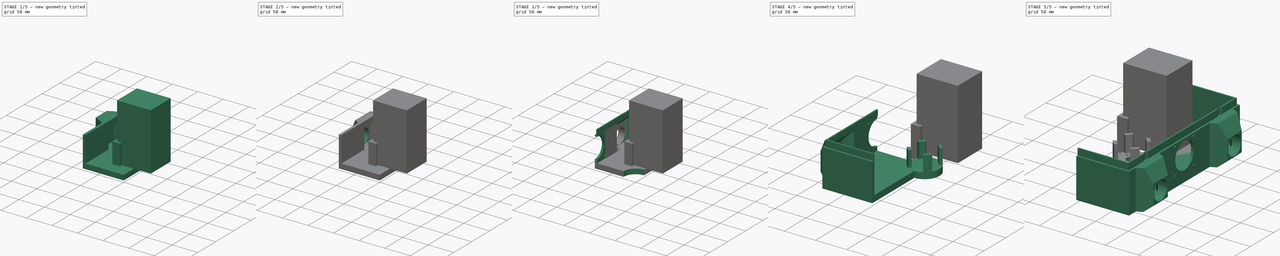
[diagram: build sequence overview — one tinted view per stage of 5, left to right]
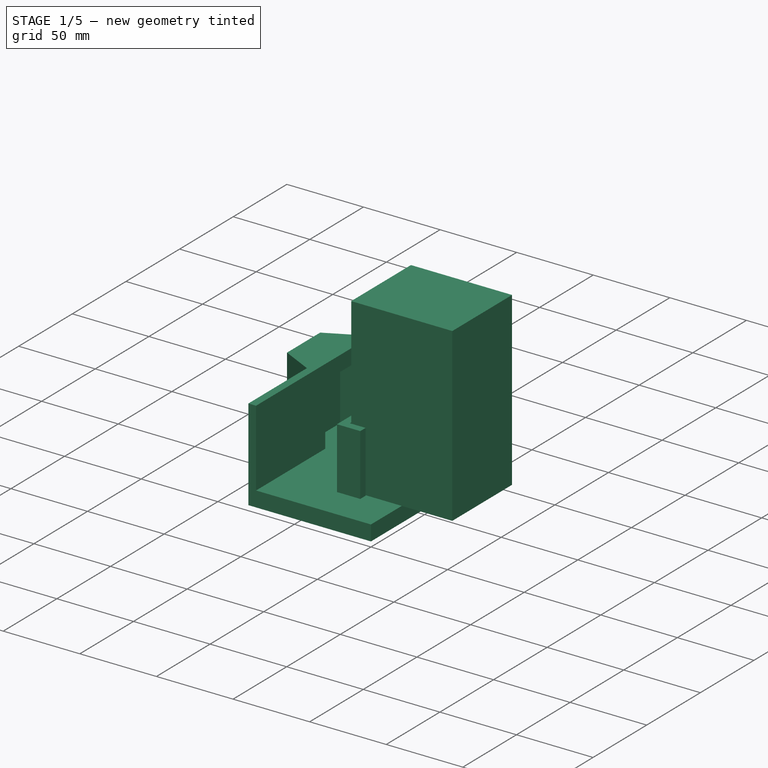
[diagram: stage 1 of 5 — iso view after this stage's code; geometry added in this stage tinted green]
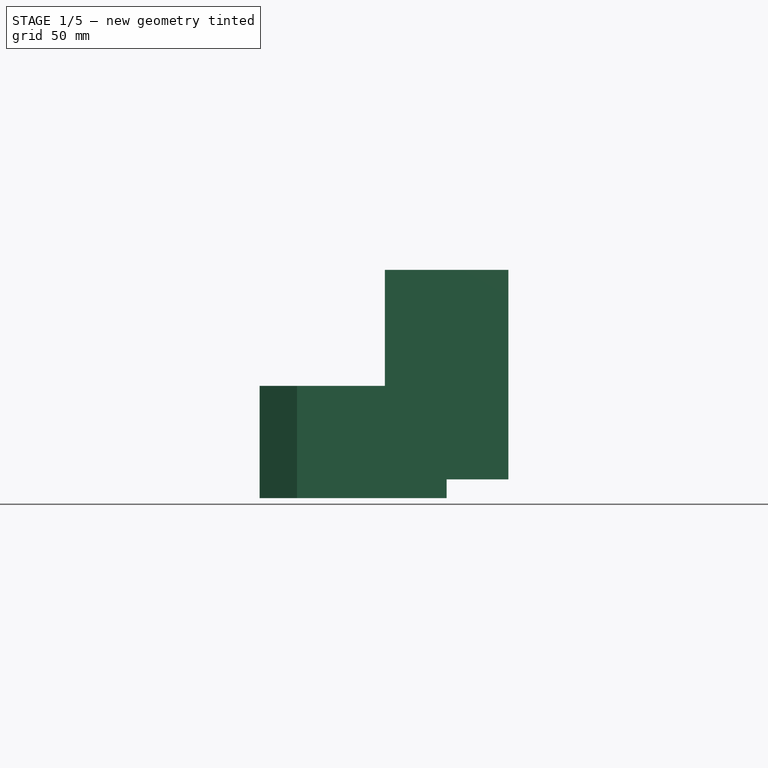
[diagram: stage 1 of 5 — front view after this stage's code; geometry added in this stage tinted green]
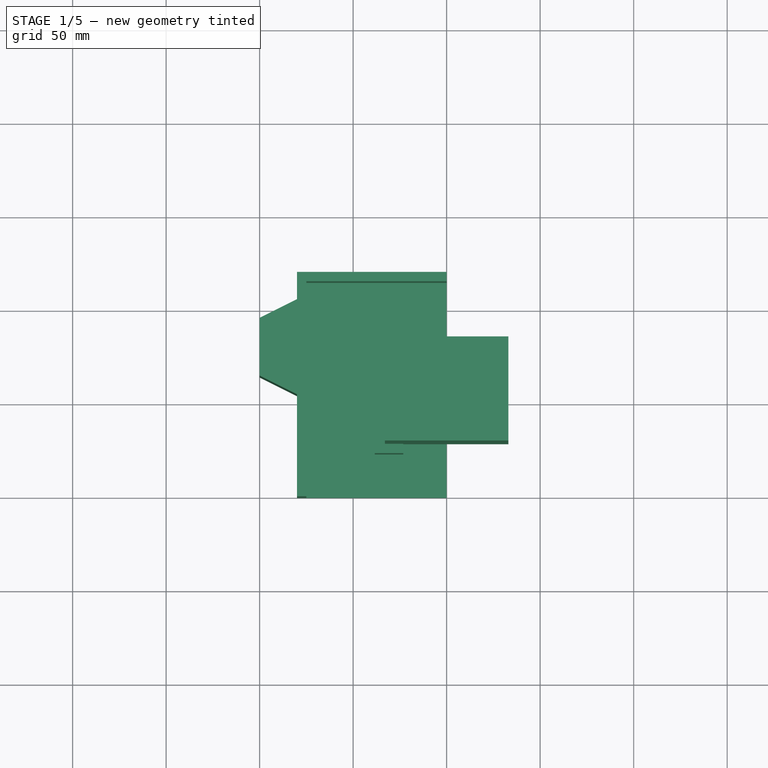
[diagram: stage 1 of 5 — top view after this stage's code; geometry added in this stage tinted green]
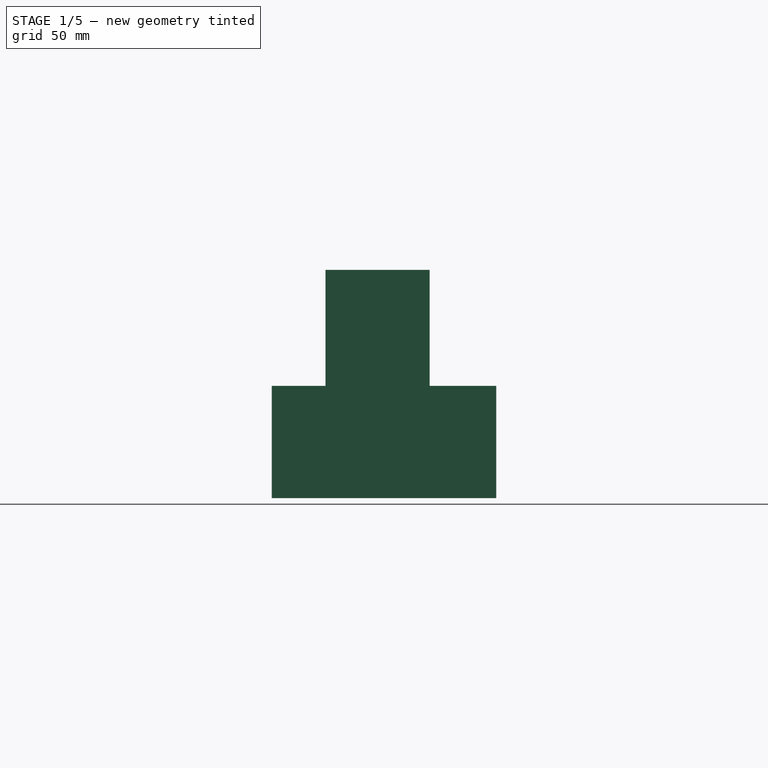
[diagram: stage 1 of 5 — right view after this stage's code; geometry added in this stage tinted green]
FCSTD DOCUMENT  (FreeCAD 0.18R16146 (Git))
Label: goat-ver2
License: All rights reserved
LicenseURL: http://en.wikipedia.org/wiki/All_rights_reserved
objects: Sketcher::SketchObject×20, PartDesign::Pocket×11, PartDesign::Pad×7, PartDesign::Body×4, Part::Mirroring×3, Spreadsheet::Sheet×1, PartDesign::PolarPattern×1, PartDesign::Chamfer×1
note: 65 computed .brp shape members not serialized (recipe doc carries the construction recipe); baked Part::Feature solids carry a one-line shape summary decoded from their .brp

FEATURE [Sketcher::SketchObject] Sketch011
  AttachmentOffset = pos=(0,0,10) rot=(0,0,1;0rad)
  MapMode = 5
  Placement = pos=(0,0,10) rot=(0,0,1;0rad)
  Support = -> [XY_Plane001]
  expr: AttachmentOffset.Base.z = config.car_floor_thickness
  expr: Constraints[1] = config.grasscutter_inner_radius
  sketch-geometry (1):
    g0: Circle CenterX=0 CenterY=0 CenterZ=0 NormalX=0 NormalY=0 NormalZ=1 AngleXU=0 Radius=7.5
  constraints (2):
    c: Coincident(g0,g-1)
    c: Radius(g0) = 7.5
FEATURE [Sketcher::SketchObject] Sketch012
  AttachmentOffset = pos=(0,0,-2) rot=(0,0,1;0rad)
  MapMode = 5
  Placement = pos=(0,0,-2) rot=(0,0,1;0rad)
  Support = -> [XY_Plane001]
  expr: Constraints[19] = config.grasscutter_screw_hole_radius
  expr: Constraints[18] = config.grasscutter_screw_radius
  sketch-geometry (13):
    g0: LineSegment [constr] StartX=11.6913 StartY=6.75 StartZ=0 EndX=-1.24e-14 EndY=13.5 EndZ=0
    g1: LineSegment [constr] StartX=-1.24e-14 StartY=13.5 StartZ=0 EndX=-11.6913 EndY=6.75 EndZ=0
    g2: LineSegment [constr] StartX=-11.6913 StartY=6.75 StartZ=0 EndX=-11.6913 EndY=-6.75 EndZ=0
    g3: LineSegment [constr] StartX=-11.6913 StartY=-6.75 StartZ=0 EndX=1.8e-15 EndY=-13.5 EndZ=0
    g4: LineSegment [constr] StartX=1.8e-15 StartY=-13.5 StartZ=0 EndX=11.6913 EndY=-6.75 EndZ=0
    g5: LineSegment [constr] StartX=11.6913 StartY=-6.75 StartZ=0 EndX=11.6913 EndY=6.75 EndZ=0
    g6: Circle [constr] CenterX=0 CenterY=0 CenterZ=0 NormalX=0 NormalY=0 NormalZ=1 AngleXU=0 Radius=13.5
    g7: Circle [constr] CenterX=-11.6913 CenterY=-6.75 CenterZ=0 NormalX=0 NormalY=0 NormalZ=1 AngleXU=0 Radius=1.52
    g8: Circle CenterX=1.8e-15 CenterY=-13.5 CenterZ=0 NormalX=0 NormalY=0 NormalZ=1 AngleXU=0 Radius=1.52
    g9: Circle [constr] CenterX=11.6913 CenterY=-6.75 CenterZ=0 NormalX=0 NormalY=0 NormalZ=1 AngleXU=0 Radius=1.52
    g10: Circle CenterX=11.6913 CenterY=6.75 CenterZ=0 NormalX=0 NormalY=0 NormalZ=1 AngleXU=0 Radius=1.52
    g11: Circle CenterX=-1.24e-14 CenterY=13.5 CenterZ=0 NormalX=0 NormalY=0 NormalZ=1 AngleXU=0 Radius=1.52
    g12: Circle CenterX=-11.6913 CenterY=6.75 CenterZ=0 NormalX=0 NormalY=0 NormalZ=1 AngleXU=0 Radius=1.52
  constraints (28):
    c: Coincident(g0,g1)
    c: Coincident(g1,g2)
    c: Coincident(g2,g3)
    c: Coincident(g3,g4)
    c: Coincident(g4,g5)
    c: Coincident(g5,g0)
    c: Equal(g0, g1-g5) x5
    c: PointOnObject(g0,g6)
    c: PointOnObject(g1,g6)
    c: PointOnObject(g2,g6)
    c: PointOnObject(g3,g6)
    c: PointOnObject(g4,g6)
    c: PointOnObject(g5,g6)
    c: Coincident(g6,g-1)
    c: Radius(g6) = 13.5
    c: Radius(g9) = 1.52
    c: Equal(g9,g8)
    c: Equal(g9,g7)
    c: Equal(g9,g12)
    c: Equal(g9,g11)
    c: Equal(g9,g10)
    c: Coincident(g3,g8)
    c: Coincident(g2,g7)
    c: Coincident(g1,g12)
    c: Coincident(g4,g9)
    c: Coincident(g1,g11)
    c: Coincident(g10,g0)
    c: Vertical(g2)
FEATURE [Sketcher::SketchObject] Sketch013
  MapMode = 5
  Support = -> [XY_Plane001]
  expr: Constraints[24] = config.grasscutter_screw_nut_radius
  expr: Constraints[18] = config.grasscutter_screw_radius
  sketch-geometry (11):
    g0: LineSegment [constr] StartX=11.6913 StartY=6.75 StartZ=0 EndX=-1.24e-14 EndY=13.5 EndZ=0
    g1: LineSegment [constr] StartX=-1.24e-14 StartY=13.5 StartZ=0 EndX=-11.6913 EndY=6.75 EndZ=0
    g2: LineSegment [constr] StartX=-11.6913 StartY=6.75 StartZ=0 EndX=-11.6913 EndY=-6.75 EndZ=0
    g3: LineSegment [constr] StartX=-11.6913 StartY=-6.75 StartZ=0 EndX=1.8e-15 EndY=-13.5 EndZ=0
    g4: LineSegment [constr] StartX=1.8e-15 StartY=-13.5 StartZ=0 EndX=11.6913 EndY=-6.75 EndZ=0
    g5: LineSegment [constr] StartX=11.6913 StartY=-6.75 StartZ=0 EndX=11.6913 EndY=6.75 EndZ=0
    g6: Circle [constr] CenterX=0 CenterY=0 CenterZ=0 NormalX=0 NormalY=0 NormalZ=1 AngleXU=0 Radius=13.5
    g7: Circle CenterX=1.8e-15 CenterY=-13.5 CenterZ=0 NormalX=0 NormalY=0 NormalZ=1 AngleXU=0 Radius=2.5
    g8: Circle CenterX=11.6913 CenterY=6.75 CenterZ=0 NormalX=0 NormalY=0 NormalZ=1 AngleXU=0 Radius=2.5
    g9: Circle CenterX=-1.24e-14 CenterY=13.5 CenterZ=0 NormalX=0 NormalY=0 NormalZ=1 AngleXU=0 Radius=2.5
    g10: Circle CenterX=-11.6913 CenterY=6.75 CenterZ=0 NormalX=0 NormalY=0 NormalZ=1 AngleXU=0 Radius=2.5
  constraints (24):
    c: Coincident(g0,g1)
    c: Coincident(g1,g2)
    c: Coincident(g2,g3)
    c: Coincident(g3,g4)
    c: Coincident(g4,g5)
    c: Coincident(g5,g0)
    c: Equal(g0, g1-g5) x5
    c: PointOnObject(g0,g6)
    c: PointOnObject(g1,g6)
    c: PointOnObject(g2,g6)
    c: PointOnObject(g3,g6)
    c: PointOnObject(g4,g6)
    c: PointOnObject(g5,g6)
    c: Coincident(g6,g-1)
    c: Radius(g6) = 13.5
    c: Coincident(g3,g7)
    c: Coincident(g1,g10)
    c: Coincident(g1,g9)
    c: Coincident(g8,g0)
    c: Vertical(g2)
    c: Radius(g8) = 2.5
    c: Equal(g8,g9)
    c: Equal(g9,g10)
    c: Equal(g7,g8)
FEATURE [Sketcher::SketchObject] Sketch
  MapMode = 5
  Support = -> [XY_Plane]
  expr: Constraints[10] = config.car_width / 2
  expr: Constraints[9] = config.car_length / 2
  sketch-geometry (4):
    g0: LineSegment StartX=0 StartY=0 StartZ=0 EndX=-80 EndY=0 EndZ=0
    g1: LineSegment StartX=-80 StartY=0 StartZ=0 EndX=-80 EndY=120 EndZ=0
    g2: LineSegment StartX=-80 StartY=120 StartZ=0 EndX=0 EndY=120 EndZ=0
    g3: LineSegment StartX=0 StartY=120 StartZ=0 EndX=0 EndY=0 EndZ=0
  constraints (11):
    c: Coincident(g0,g1)
    c: Coincident(g1,g2)
    c: Coincident(g2,g3)
    c: Coincident(g3,g0)
    c: Horizontal(g0)
    c: Horizontal(g2)
    c: Vertical(g1)
    c: Vertical(g3)
    c: Coincident(g0,g-1)
    c: Distance(g3) = 120
    c: Distance(g2) = 80
FEATURE [PartDesign::Pad] Pad  label="pad-floor"
  Length = 10
  Length2 = 100
  Profile = -> Sketch
  Type = 0
  expr: Length = config.car_floor_thickness
FEATURE [Sketcher::SketchObject] Sketch002
  MapMode = 5
  Support = -> [XY_Plane]
  expr: Constraints[34] = config.engine_placement_from_base
  expr: Constraints[28] = config.car_width / 2
  expr: Constraints[26] = config.car_wall_thickness
  expr: Constraints[27] = config.car_wall_thickness
  expr: Constraints[25] = config.engine_front_length
  expr: Constraints[24] = config.engine_front_length / 2
  expr: Constraints[23] = config.engine_house_width
  expr: Constraints[21] = config.car_length / 2
  expr: Constraints[20] = config.car_width / 2
  sketch-geometry (12):
    g0: LineSegment StartX=0 StartY=115 StartZ=0 EndX=0 EndY=120 EndZ=0
    g1: LineSegment StartX=0 StartY=120 StartZ=0 EndX=-80 EndY=120 EndZ=0
    g2: LineSegment StartX=-80 StartY=120 StartZ=0 EndX=-80 EndY=105.45 EndZ=0
    g3: LineSegment StartX=-80 StartY=105.45 StartZ=0 EndX=-100 EndY=95.45 EndZ=0
    g4: LineSegment StartX=-100 StartY=95.45 StartZ=0 EndX=-100 EndY=64.55 EndZ=0
    g5: LineSegment StartX=-100 StartY=64.55 StartZ=0 EndX=-80 EndY=54.55 EndZ=0
    g6: LineSegment StartX=-80 StartY=54.55 StartZ=0 EndX=-80 EndY=0 EndZ=0
    g7: LineSegment StartX=-80 StartY=0 StartZ=0 EndX=-75 EndY=0 EndZ=0
    g8: LineSegment StartX=-75 StartY=0 StartZ=0 EndX=-75 EndY=115 EndZ=0
    g9: LineSegment StartX=-75 StartY=115 StartZ=0 EndX=0 EndY=115 EndZ=0
    g10: LineSegment [constr] StartX=-100 StartY=64.55 StartZ=0 EndX=-100 EndY=80 EndZ=0
    g11: LineSegment [constr] StartX=-100 StartY=80 StartZ=0 EndX=-100 EndY=95.45 EndZ=0
  constraints (35):
    c: PointOnObject(g0,g-2)
    c: Vertical(g0)
    c: Coincident(g0,g1)
    c: Horizontal(g1)
    c: Coincident(g1,g2)
    c: Vertical(g2)
    c: Coincident(g2,g3)
    c: Coincident(g3,g4)
    c: Vertical(g4)
    c: Coincident(g4,g5)
    c: Coincident(g5,g6)
    c: PointOnObject(g6,g-1)
    c: Vertical(g6)
    c: Coincident(g6,g7)
    c: PointOnObject(g7,g-1)
    c: Coincident(g7,g8)
    c: Vertical(g8)
    c: Coincident(g8,g9)
    c: Coincident(g9,g0)
    c: Horizontal(g9)
    c: Distance(g1) = 80
    c: Distance(g-1,g0) = 120
    c: Equal(g3,g5)
    c: Distance(g4) = 30.9
    c: DistanceY(g3,g2) = 10
    c: DistanceX(g3,g2) = 20
    c: Distance(g0,g0) = 5
    c: Distance(g6,g7) = 5
    c: Distance(g-1,g6) = 80
    c: Coincident(g4,g10)
    c: PointOnObject(g10,g4)
    c: Coincident(g10,g11)
    c: Coincident(g11,g3)
    c: Equal(g10,g11)
    c: DistanceY(g-1,g10) = 80
FEATURE [PartDesign::Pad] Pad001  label="pad-walls"
  BaseFeature = -> Pad
  Length = 60
  Length2 = 100
  Profile = -> Sketch002
  Type = 0
  expr: Length = config.lower_car_height
FEATURE [Sketcher::SketchObject] Sketch003
  AttachmentOffset = pos=(0,0,-75) rot=(0,0,1;0rad)
  MapMode = 5
  Placement = pos=(-75,1.67e-14,-1.67e-14) rot=(0.57735,0.57735,0.57735;2.0944rad)
  Support = -> [YZ_Plane]
  expr: AttachmentOffset.Base.y = 0
  expr: Constraints[16] = config.engine_placement_from_base
  expr: Constraints[10] = config.car_floor_thickness
  expr: Constraints[9] = config.engine_house_height
  expr: Constraints[8] = config.engine_house_width
  sketch-geometry (6):
    g0: LineSegment StartX=64.55 StartY=50 StartZ=0 EndX=95.45 EndY=50 EndZ=0
    g1: LineSegment StartX=95.45 StartY=50 StartZ=0 EndX=95.45 EndY=10 EndZ=0
    g2: LineSegment StartX=95.45 StartY=10 StartZ=0 EndX=64.55 EndY=10 EndZ=0
    g3: LineSegment StartX=64.55 StartY=10 StartZ=0 EndX=64.55 EndY=50 EndZ=0
    g4: LineSegment [constr] StartX=64.55 StartY=10 StartZ=0 EndX=80 EndY=10 EndZ=0
    g5: LineSegment [constr] StartX=80 StartY=10 StartZ=0 EndX=95.45 EndY=10 EndZ=0
  constraints (17):
    c: Coincident(g0,g1)
    c: Coincident(g1,g2)
    c: Coincident(g2,g3)
    c: Coincident(g3,g0)
    c: Horizontal(g0)
    c: Horizontal(g2)
    c: Vertical(g1)
    c: Vertical(g3)
    c: Distance(g0) = 30.9
    c: Distance(g3) = 40
    c: DistanceY(g-1,g2) = 10
    c: Coincident(g2,g4)
    c: Horizontal(g4)
    c: Coincident(g4,g5)
    c: Coincident(g5,g1)
    c: Equal(g4,g5)
    c: DistanceX(g-1,g4) = 80
FEATURE [PartDesign::Pocket] Pocket  label="pocket-engine-house"
  BaseFeature = -> Pad001
  Length = 12
  Length2 = 100
  Profile = -> Sketch003
  Type = 0
  expr: Length = config.engine_pocket_house
FEATURE [Sketcher::SketchObject] Sketch018
  AttachmentOffset = pos=(0,28.7,10) rot=(0,0,1;0rad)
  MapMode = 5
  Placement = pos=(0,28.7,10) rot=(0,0,1;0rad)
  Support = -> [XY_Plane002]
  expr: AttachmentOffset.Base.y = config.grasscutter_motor_radius + 10mm
  expr: AttachmentOffset.Base.x = 0
  expr: AttachmentOffset.Base.z = config.car_floor_thickness
  expr: Constraints[9] = config.battery_width
  expr: Constraints[8] = config.battery_length
  sketch-geometry (4):
    g0: LineSegment StartX=-33 StartY=55.7 StartZ=0 EndX=33 EndY=55.7 EndZ=0
    g1: LineSegment StartX=33 StartY=55.7 StartZ=0 EndX=33 EndY=0 EndZ=0
    g2: LineSegment StartX=33 StartY=0 StartZ=0 EndX=-33 EndY=0 EndZ=0
    g3: LineSegment StartX=-33 StartY=0 StartZ=0 EndX=-33 EndY=55.7 EndZ=0
  constraints (11):
    c: Coincident(g0,g1)
    c: Coincident(g1,g2)
    c: Coincident(g2,g3)
    c: Coincident(g3,g0)
    c: Horizontal(g0)
    c: Horizontal(g2)
    c: Vertical(g1)
    c: Vertical(g3)
    c: Distance(g0) = 66
    c: Distance(g3) = 55.7
    c: Symmetric(g1,g2,g-1)
FEATURE [PartDesign::Pad] Pad005
  Length = 112
  Length2 = 100
  Profile = -> Sketch018
  Type = 0
  expr: Length = config.battery_height
FEATURE [Sketcher::SketchObject] Sketch019
  MapMode = 5
  Support = -> [XY_Plane]
  expr: Constraints[74] = config.engine_screw_nut_radius
  expr: Constraints[14] = config.engine_screw_sepdist
  expr: Constraints[16] = config.car_width / 2 - config.car_wall_thickness + config.engine_pocket_house
  expr: Constraints[10] = config.engine_screw_hole_radius * 2.5
  expr: Constraints[15] = config.engine_placement_from_base
  sketch-geometry (27):
    g0: LineSegment [constr] StartX=-82.875 StartY=92 StartZ=0 EndX=-58.875 EndY=92 EndZ=0
    g1: LineSegment [constr] StartX=-58.875 StartY=92 StartZ=0 EndX=-58.875 EndY=68 EndZ=0
    g2: LineSegment [constr] StartX=-58.875 StartY=68 StartZ=0 EndX=-82.875 EndY=68 EndZ=0
    g3: LineSegment [constr] StartX=-82.875 StartY=68 StartZ=0 EndX=-82.875 EndY=92 EndZ=0
    g4: LineSegment [constr] StartX=-82.875 StartY=92 StartZ=0 EndX=-87 EndY=80 EndZ=0
    g5: LineSegment [constr] StartX=-87 StartY=80 StartZ=0 EndX=-82.875 EndY=68 EndZ=0
    g6: LineSegment StartX=-79.8006 StartY=93.775 StartZ=0 EndX=-82.875 EndY=95.55 EndZ=0
    g7: LineSegment StartX=-82.875 StartY=95.55 StartZ=0 EndX=-85.9494 EndY=93.775 EndZ=0
    g8: LineSegment StartX=-85.9494 StartY=93.775 StartZ=0 EndX=-85.9494 EndY=90.225 EndZ=0
    g9: LineSegment StartX=-85.9494 StartY=90.225 StartZ=0 EndX=-82.875 EndY=88.45 EndZ=0
    g10: LineSegment StartX=-82.875 StartY=88.45 StartZ=0 EndX=-79.8006 EndY=90.225 EndZ=0
    g11: LineSegment StartX=-79.8006 StartY=90.225 StartZ=0 EndX=-79.8006 EndY=93.775 EndZ=0
    g12: Circle [constr] CenterX=-82.875 CenterY=92 CenterZ=0 NormalX=0 NormalY=0 NormalZ=1 AngleXU=0 Radius=3.55
    g13: LineSegment StartX=-55.8006 StartY=93.775 StartZ=0 EndX=-58.875 EndY=95.55 EndZ=0
    g14: LineSegment StartX=-58.875 StartY=95.55 StartZ=0 EndX=-61.9494 EndY=93.775 EndZ=0
    g15: LineSegment StartX=-61.9494 StartY=93.775 StartZ=0 EndX=-61.9494 EndY=90.225 EndZ=0
    g16: LineSegment StartX=-61.9494 StartY=90.225 StartZ=0 EndX=-58.875 EndY=88.45 EndZ=0
    g17: LineSegment StartX=-58.875 StartY=88.45 StartZ=0 EndX=-55.8006 EndY=90.225 EndZ=0
    g18: LineSegment StartX=-55.8006 StartY=90.225 StartZ=0 EndX=-55.8006 EndY=93.775 EndZ=0
    g19: Circle [constr] CenterX=-58.875 CenterY=92 CenterZ=0 NormalX=0 NormalY=0 NormalZ=1 AngleXU=0 Radius=3.55
    g20: LineSegment StartX=-58.875 StartY=71.55 StartZ=0 EndX=-61.9494 EndY=69.775 EndZ=0
    g21: LineSegment StartX=-61.9494 StartY=69.775 StartZ=0 EndX=-61.9494 EndY=66.225 EndZ=0
    g22: LineSegment StartX=-61.9494 StartY=66.225 StartZ=0 EndX=-58.875 EndY=64.45 EndZ=0
    g23: LineSegment StartX=-58.875 StartY=64.45 StartZ=0 EndX=-55.8006 EndY=66.225 EndZ=0
    g24: LineSegment StartX=-55.8006 StartY=66.225 StartZ=0 EndX=-55.8006 EndY=69.775 EndZ=0
    g25: LineSegment StartX=-55.8006 StartY=69.775 StartZ=0 EndX=-58.875 EndY=71.55 EndZ=0
    g26: Circle [constr] CenterX=-58.875 CenterY=68 CenterZ=0 NormalX=0 NormalY=0 NormalZ=1 AngleXU=0 Radius=3.55
  constraints (65):
    c: Coincident(g0,g1)
    c: Coincident(g1,g2)
    c: Coincident(g2,g3)
    c: Coincident(g3,g0)
    c: Horizontal(g0)
    c: Vertical(g1)
    c: Coincident(g0,g4)
    c: Coincident(g4,g5)
    c: Coincident(g5,g2)
    c: Equal(g5,g4)
    c: DistanceX(g4,g0) = 4.125
    c: Equal(g0,g3)
    c: Equal(g3,g2)
    c: Equal(g2,g1)
    c: Distance(g1) = 24
    c: DistanceY(g-1,g4) = 80
    c: DistanceX(g4,g-1) = 87
    c: Coincident(g6,g7)
    c: Coincident(g7,g8)
    c: Coincident(g8,g9)
    c: Coincident(g9,g10)
    c: Coincident(g10,g11)
    c: Coincident(g11,g6)
    c: Equal(g6, g7-g11) x5
    c: PointOnObject(g6,g12)
    c: PointOnObject(g7,g12)
    c: PointOnObject(g8,g12)
    c: PointOnObject(g9,g12)
    c: PointOnObject(g10,g12)
    c: PointOnObject(g11,g12)
    c: Coincident(g12,g0)
    c: Coincident(g13,g14)
    c: Coincident(g14,g15)
    c: Coincident(g15,g16)
    c: Coincident(g16,g17)
    c: Coincident(g17,g18)
    c: Coincident(g18,g13)
    c: Equal(g13, g14-g18) x5
    c: PointOnObject(g13,g19)
    c: PointOnObject(g14,g19)
    c: PointOnObject(g15,g19)
    c: PointOnObject(g16,g19)
    c: PointOnObject(g17,g19)
    c: PointOnObject(g18,g19)
    c: Coincident(g19,g0)
    c: Coincident(g20,g21)
    c: Coincident(g21,g22)
    c: Coincident(g22,g23)
    c: Coincident(g23,g24)
    c: Coincident(g24,g25)
    c: Coincident(g25,g20)
    c: Equal(g20, g21-g25) x5
    c: PointOnObject(g20,g26)
    c: PointOnObject(g21,g26)
    c: PointOnObject(g22,g26)
    c: PointOnObject(g23,g26)
    c: PointOnObject(g24,g26)
    c: PointOnObject(g25,g26)
    c: Coincident(g26,g1)
    c: Vertical(g8)
    c: Vertical(g21)
    c: Vertical(g15)
    c: Radius(g26) = 3.55
    c: Equal(g26,g19)
    c: Equal(g26,g12)
FEATURE [Sketcher::SketchObject] Sketch020
  MapMode = 5
  Support = -> [XY_Plane002]
FEATURE [PartDesign::Body] Body002  label="body-battery"
  Group = -> [Sketch018,Pad005,Sketch020]
  Origin = -> Origin002
  Tip = -> Pad005
FEATURE [Sketcher::SketchObject] Sketch021
  MapMode = 5
  Support = -> [XY_Plane003]
  expr: Constraints[14] = config.car_wall_thickness
  sketch-geometry (6):
    g0: LineSegment StartX=-38.4449 StartY=38.4225 StartZ=0 EndX=-38.4449 EndY=23.2077 EndZ=0
    g1: LineSegment StartX=-38.4449 StartY=23.2077 StartZ=0 EndX=-23.2301 EndY=23.2077 EndZ=0
    g2: LineSegment StartX=-33.4449 StartY=28.2077 StartZ=0 EndX=-33.4449 EndY=38.4225 EndZ=0
    g3: LineSegment StartX=-33.4449 StartY=38.4225 StartZ=0 EndX=-38.4449 EndY=38.4225 EndZ=0
    g4: LineSegment StartX=-23.2301 StartY=23.2077 StartZ=0 EndX=-23.2301 EndY=28.2077 EndZ=0
    g5: LineSegment StartX=-23.2301 StartY=28.2077 StartZ=0 EndX=-33.4449 EndY=28.2077 EndZ=0
  constraints (15):
    c: Vertical(g0)
    c: Coincident(g0,g1)
    c: Horizontal(g1)
    c: Coincident(g2,g3)
    c: Coincident(g3,g0)
    c: Horizontal(g3)
    c: Equal(g0,g1)
    c: Coincident(g1,g4)
    c: Vertical(g4)
    c: Coincident(g4,g5)
    c: Coincident(g5,g2)
    c: Equal(g5,g2)
    c: Equal(g3,g4)
    c: Vertical(g2)
    c: Distance(g3) = 5
FEATURE [PartDesign::Pad] Pad006
  Length = 50
  Length2 = 100
  Profile = -> Sketch021
  Type = 0
FEATURE [PartDesign::Body] Body003
  Group = -> [Sketch021,Pad006]
  Origin = -> Origin003
  Tip = -> Pad006
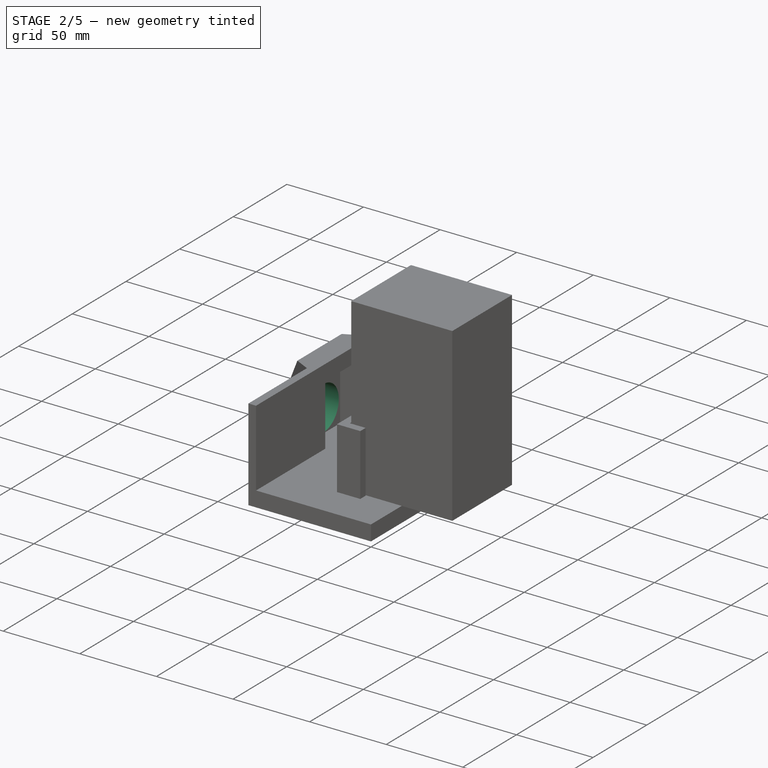
[diagram: stage 2 of 5 — iso view after this stage's code; geometry added in this stage tinted green]
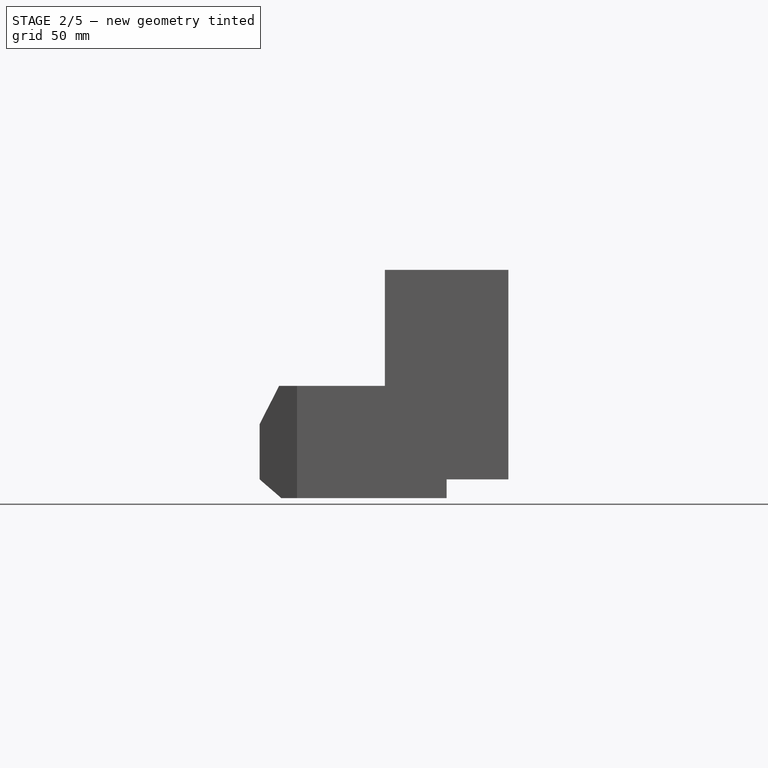
[diagram: stage 2 of 5 — front view after this stage's code; geometry added in this stage tinted green]
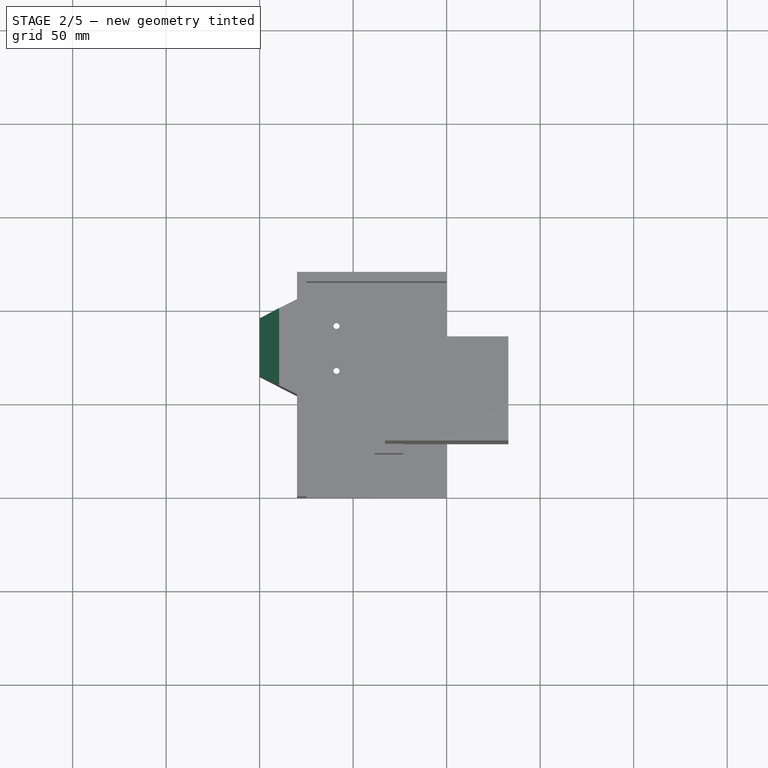
[diagram: stage 2 of 5 — top view after this stage's code; geometry added in this stage tinted green]
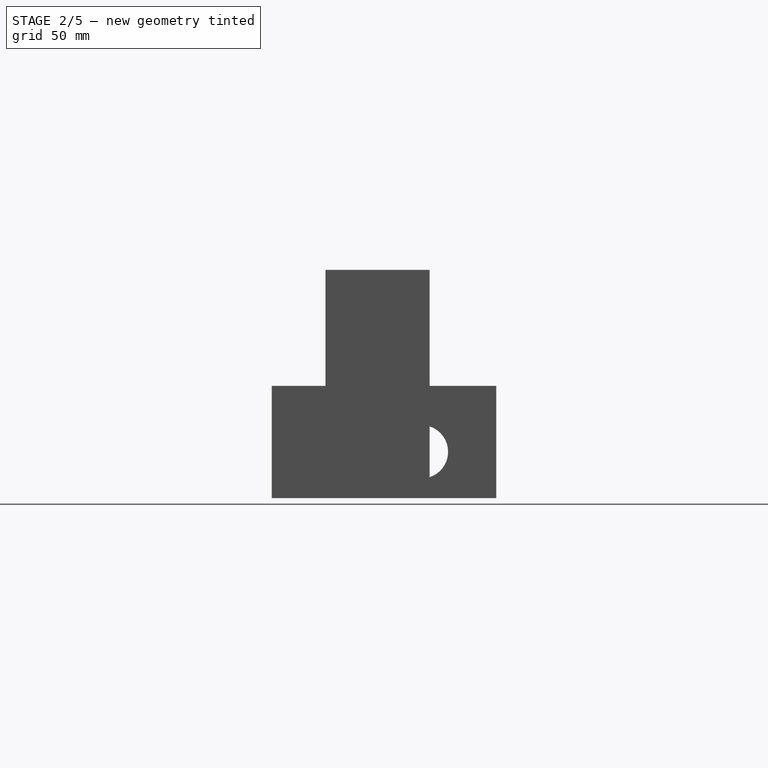
[diagram: stage 2 of 5 — right view after this stage's code; geometry added in this stage tinted green]
FEATURE [Sketcher::SketchObject] Sketch004
  MapMode = 5
  Placement = pos=(0,0,0) rot=(0.57735,0.57735,0.57735;2.0944rad)
  Support = -> [YZ_Plane]
  expr: Constraints[2] = config.engine_radius
  expr: Constraints[1] = config.engine_placement_from_base
  expr: Constraints[0] = config.car_floor_thickness + config.engine_lift_from_base + config.engine_radius
  sketch-geometry (1):
    g0: Circle CenterX=80 CenterY=24.75 CenterZ=0 NormalX=0 NormalY=0 NormalZ=1 AngleXU=0 Radius=14.25
  constraints (3):
    c: DistanceY(g-1,g0) = 24.75
    c: DistanceX(g-1,g0) = 80
    c: Radius(g0) = 14.25
FEATURE [PartDesign::Pocket] Pocket001  label="pocket-engine-radius"
  BaseFeature = -> Pocket
  Length = 5
  Length2 = 100
  Profile = -> Sketch004
  Type = 1
FEATURE [Sketcher::SketchObject] Sketch005
  MapMode = 5
  Support = -> [XY_Plane]
  expr: Constraints[24] = config.car_width / 2 - config.car_wall_thickness + config.engine_pocket_house
  expr: Constraints[20] = config.engine_screw_hole_radius
  expr: Constraints[15] = config.engine_placement_from_base
  expr: Constraints[14] = config.engine_screw_sepdist
  expr: Constraints[10] = config.engine_screw_hole_radius * 2.5
  sketch-geometry (10):
    g0: LineSegment [constr] StartX=-82.875 StartY=92 StartZ=0 EndX=-58.875 EndY=92 EndZ=0
    g1: LineSegment [constr] StartX=-58.875 StartY=92 StartZ=0 EndX=-58.875 EndY=68 EndZ=0
    g2: LineSegment [constr] StartX=-58.875 StartY=68 StartZ=0 EndX=-82.875 EndY=68 EndZ=0
    g3: LineSegment [constr] StartX=-82.875 StartY=68 StartZ=0 EndX=-82.875 EndY=92 EndZ=0
    g4: LineSegment [constr] StartX=-82.875 StartY=92 StartZ=0 EndX=-87 EndY=80 EndZ=0
    g5: LineSegment [constr] StartX=-87 StartY=80 StartZ=0 EndX=-82.875 EndY=68 EndZ=0
    g6: Circle CenterX=-82.875 CenterY=92 CenterZ=0 NormalX=0 NormalY=0 NormalZ=1 AngleXU=0 Radius=1.65
    g7: Circle CenterX=-58.875 CenterY=92 CenterZ=0 NormalX=0 NormalY=0 NormalZ=1 AngleXU=0 Radius=1.65
    g8: Circle CenterX=-58.875 CenterY=68 CenterZ=0 NormalX=0 NormalY=0 NormalZ=1 AngleXU=0 Radius=1.65
    g9: Circle CenterX=-82.875 CenterY=68 CenterZ=0 NormalX=0 NormalY=0 NormalZ=1 AngleXU=0 Radius=1.65
  constraints (25):
    c: Coincident(g0,g1)
    c: Coincident(g1,g2)
    c: Coincident(g2,g3)
    c: Coincident(g3,g0)
    c: Horizontal(g0)
    c: Vertical(g1)
    c: Coincident(g0,g4)
    c: Coincident(g4,g5)
    c: Coincident(g5,g2)
    c: Equal(g5,g4)
    c: DistanceX(g4,g0) = 4.125
    c: Equal(g0,g3)
    c: Equal(g3,g2)
    c: Equal(g2,g1)
    c: Distance(g1) = 24
    c: DistanceY(g-1,g4) = 80
    c: Coincident(g6,g0)
    c: Coincident(g7,g0)
    c: Coincident(g8,g1)
    c: Coincident(g9,g2)
    c: Radius(g6) = 1.65
    c: Equal(g6,g7)
    c: Equal(g6,g8)
    c: Equal(g6,g9)
    c: DistanceX(g4,g-1) = 87
FEATURE [PartDesign::Pocket] Pocket002  label="pocket-engine-screw"
  BaseFeature = -> Pocket001
  Length = 10
  Length2 = 100
  Profile = -> Sketch005
  Reversed = true
  Type = 0
  expr: Length = config.car_floor_thickness
FEATURE [Sketcher::SketchObject] Sketch006
  MapMode = 5
  Support = -> [XY_Plane]
  expr: Constraints[74] = config.engine_screw_nut_radius
  expr: Constraints[14] = config.engine_screw_sepdist
  expr: Constraints[16] = config.car_width / 2 - config.car_wall_thickness + config.engine_pocket_house
  expr: Constraints[10] = config.engine_screw_hole_radius * 2.5
  expr: Constraints[15] = config.engine_placement_from_base
  sketch-geometry (34):
    g0: LineSegment [constr] StartX=-82.875 StartY=92 StartZ=0 EndX=-58.875 EndY=92 EndZ=0
    g1: LineSegment [constr] StartX=-58.875 StartY=92 StartZ=0 EndX=-58.875 EndY=68 EndZ=0
    g2: LineSegment [constr] StartX=-58.875 StartY=68 StartZ=0 EndX=-82.875 EndY=68 EndZ=0
    g3: LineSegment [constr] StartX=-82.875 StartY=68 StartZ=0 EndX=-82.875 EndY=92 EndZ=0
    g4: LineSegment [constr] StartX=-82.875 StartY=92 StartZ=0 EndX=-87 EndY=80 EndZ=0
    g5: LineSegment [constr] StartX=-87 StartY=80 StartZ=0 EndX=-82.875 EndY=68 EndZ=0
    g6: LineSegment StartX=-79.8006 StartY=93.775 StartZ=0 EndX=-82.875 EndY=95.55 EndZ=0
    g7: LineSegment StartX=-82.875 StartY=95.55 StartZ=0 EndX=-85.9494 EndY=93.775 EndZ=0
    g8: LineSegment StartX=-85.9494 StartY=93.775 StartZ=0 EndX=-85.9494 EndY=90.225 EndZ=0
    g9: LineSegment StartX=-85.9494 StartY=90.225 StartZ=0 EndX=-82.875 EndY=88.45 EndZ=0
    g10: LineSegment StartX=-82.875 StartY=88.45 StartZ=0 EndX=-79.8006 EndY=90.225 EndZ=0
    g11: LineSegment StartX=-79.8006 StartY=90.225 StartZ=0 EndX=-79.8006 EndY=93.775 EndZ=0
    g12: Circle [constr] CenterX=-82.875 CenterY=92 CenterZ=0 NormalX=0 NormalY=0 NormalZ=1 AngleXU=0 Radius=3.55
    g13: LineSegment StartX=-55.8006 StartY=93.775 StartZ=0 EndX=-58.875 EndY=95.55 EndZ=0
    g14: LineSegment StartX=-58.875 StartY=95.55 StartZ=0 EndX=-61.9494 EndY=93.775 EndZ=0
    g15: LineSegment StartX=-61.9494 StartY=93.775 StartZ=0 EndX=-61.9494 EndY=90.225 EndZ=0
    g16: LineSegment StartX=-61.9494 StartY=90.225 StartZ=0 EndX=-58.875 EndY=88.45 EndZ=0
    g17: LineSegment StartX=-58.875 StartY=88.45 StartZ=0 EndX=-55.8006 EndY=90.225 EndZ=0
    g18: LineSegment StartX=-55.8006 StartY=90.225 StartZ=0 EndX=-55.8006 EndY=93.775 EndZ=0
    g19: Circle [constr] CenterX=-58.875 CenterY=92 CenterZ=0 NormalX=0 NormalY=0 NormalZ=1 AngleXU=0 Radius=3.55
    g20: LineSegment StartX=-58.875 StartY=71.55 StartZ=0 EndX=-61.9494 EndY=69.775 EndZ=0
    g21: LineSegment StartX=-61.9494 StartY=69.775 StartZ=0 EndX=-61.9494 EndY=66.225 EndZ=0
    g22: LineSegment StartX=-61.9494 StartY=66.225 StartZ=0 EndX=-58.875 EndY=64.45 EndZ=0
    g23: LineSegment StartX=-58.875 StartY=64.45 StartZ=0 EndX=-55.8006 EndY=66.225 EndZ=0
    g24: LineSegment StartX=-55.8006 StartY=66.225 StartZ=0 EndX=-55.8006 EndY=69.775 EndZ=0
    g25: LineSegment StartX=-55.8006 StartY=69.775 StartZ=0 EndX=-58.875 EndY=71.55 EndZ=0
    g26: Circle [constr] CenterX=-58.875 CenterY=68 CenterZ=0 NormalX=0 NormalY=0 NormalZ=1 AngleXU=0 Radius=3.55
    g27: LineSegment StartX=-79.8006 StartY=69.775 StartZ=0 EndX=-82.875 EndY=71.55 EndZ=0
    g28: LineSegment StartX=-82.875 StartY=71.55 StartZ=0 EndX=-85.9494 EndY=69.775 EndZ=0
    g29: LineSegment StartX=-85.9494 StartY=69.775 StartZ=0 EndX=-85.9494 EndY=66.225 EndZ=0
    g30: LineSegment StartX=-85.9494 StartY=66.225 StartZ=0 EndX=-82.875 EndY=64.45 EndZ=0
    g31: LineSegment StartX=-82.875 StartY=64.45 StartZ=0 EndX=-79.8006 EndY=66.225 EndZ=0
    g32: LineSegment StartX=-79.8006 StartY=66.225 StartZ=0 EndX=-79.8006 EndY=69.775 EndZ=0
    g33: Circle [constr] CenterX=-82.875 CenterY=68 CenterZ=0 NormalX=0 NormalY=0 NormalZ=1 AngleXU=0 Radius=3.55
  constraints (81):
    c: Coincident(g0,g1)
    c: Coincident(g1,g2)
    c: Coincident(g2,g3)
    c: Coincident(g3,g0)
    c: Horizontal(g0)
    c: Vertical(g1)
    c: Coincident(g0,g4)
    c: Coincident(g4,g5)
    c: Coincident(g5,g2)
    c: Equal(g5,g4)
    c: DistanceX(g4,g0) = 4.125
    c: Equal(g0,g3)
    c: Equal(g3,g2)
    c: Equal(g2,g1)
    c: Distance(g1) = 24
    c: DistanceY(g-1,g4) = 80
    c: DistanceX(g4,g-1) = 87
    c: Coincident(g6,g7)
    c: Coincident(g7,g8)
    c: Coincident(g8,g9)
    c: Coincident(g9,g10)
    c: Coincident(g10,g11)
    c: Coincident(g11,g6)
    c: Equal(g6, g7-g11) x5
    c: PointOnObject(g6,g12)
    c: PointOnObject(g7,g12)
    c: PointOnObject(g8,g12)
    c: PointOnObject(g9,g12)
    c: PointOnObject(g10,g12)
    c: PointOnObject(g11,g12)
    c: Coincident(g12,g0)
    c: Coincident(g13,g14)
    c: Coincident(g14,g15)
    c: Coincident(g15,g16)
    c: Coincident(g16,g17)
    c: Coincident(g17,g18)
    c: Coincident(g18,g13)
    c: Equal(g13, g14-g18) x5
    c: PointOnObject(g13,g19)
    c: PointOnObject(g14,g19)
    c: PointOnObject(g15,g19)
    c: PointOnObject(g16,g19)
    c: PointOnObject(g17,g19)
    c: PointOnObject(g18,g19)
    c: Coincident(g19,g0)
    c: Coincident(g20,g21)
    c: Coincident(g21,g22)
    c: Coincident(g22,g23)
    c: Coincident(g23,g24)
    c: Coincident(g24,g25)
    c: Coincident(g25,g20)
    c: Equal(g20, g21-g25) x5
    c: PointOnObject(g20,g26)
    c: PointOnObject(g21,g26)
    c: PointOnObject(g22,g26)
    c: PointOnObject(g23,g26)
    c: PointOnObject(g24,g26)
    c: PointOnObject(g25,g26)
    c: Coincident(g26,g1)
    c: Vertical(g8)
    c: Vertical(g21)
    c: Vertical(g15)
    c: Radius(g26) = 3.55
    c: Equal(g26,g19)
    c: Equal(g26,g12)
    c: Coincident(g27,g28)
    c: Coincident(g28,g29)
    c: Coincident(g29,g30)
    c: Coincident(g30,g31)
    c: Coincident(g31,g32)
    c: Coincident(g32,g27)
    c: Equal(g27, g28-g32) x5
    c: PointOnObject(g27,g33)
    c: PointOnObject(g28,g33)
    c: PointOnObject(g29,g33)
    c: PointOnObject(g30,g33)
    c: PointOnObject(g31,g33)
    c: PointOnObject(g32,g33)
    c: Coincident(g33,g2)
    c: Vertical(g29)
    c: Equal(g33,g12)
FEATURE [PartDesign::Pocket] Pocket003  label="pocket-engine-nut"
  BaseFeature = -> Pocket002
  Length = 1.8
  Length2 = 100
  Profile = -> Sketch006
  Reversed = true
  Type = 0
  expr: Length = config.engine_screw_nut_depth
FEATURE [Sketcher::SketchObject] Sketch007
  MapMode = 5
  Placement = pos=(0,0,0) rot=(1,0,0;1.5708rad)
  Support = -> [XZ_Plane]
  expr: Constraints[17] = config.car_floor_thickness + 2 * config.engine_radius + config.engine_lift_from_base * 2
  expr: Constraints[16] = config.car_width / 2 + config.engine_pocket_house * 0.8
  expr: Constraints[10] = config.car_floor_thickness
  expr: Constraints[13] = config.lower_car_height
  expr: Constraints[12] = config.car_width / 2 + config.engine_front_length
  sketch-geometry (6):
    g0: LineSegment StartX=-89.6 StartY=60 StartZ=0 EndX=-100 EndY=39.5 EndZ=0
    g1: LineSegment StartX=-100 StartY=39.5 StartZ=0 EndX=-100 EndY=60 EndZ=0
    g2: LineSegment StartX=-100 StartY=60 StartZ=0 EndX=-89.6 EndY=60 EndZ=0
    g3: LineSegment StartX=-88.4 StartY=0 StartZ=0 EndX=-100 EndY=10 EndZ=0
    g4: LineSegment StartX=-100 StartY=10 StartZ=0 EndX=-100 EndY=0 EndZ=0
    g5: LineSegment StartX=-100 StartY=0 StartZ=0 EndX=-88.4 EndY=0 EndZ=0
  constraints (18):
    c: Coincident(g0,g1)
    c: Vertical(g1)
    c: Coincident(g1,g2)
    c: Coincident(g2,g0)
    c: Horizontal(g2)
    c: PointOnObject(g3,g-1)
    c: Coincident(g3,g4)
    c: PointOnObject(g4,g-1)
    c: Coincident(g4,g5)
    c: Coincident(g5,g3)
    c: Distance(g4) = 10
    c: DistanceX(g4,g-1) = 100
    c: DistanceX(g1,g-1) = 100
    c: DistanceY(g-1,g1) = 60
    c: DistanceX(g3,g-1) = 88.4
    c: Vertical(g4)
    c: DistanceX(g0,g-1) = 89.6
    c: DistanceY(g4,g0) = 39.5
FEATURE [PartDesign::Pocket] Pocket004  label="pocket-trim-engine-house"
  BaseFeature = -> Pocket003
  Length = 5
  Length2 = 100
  Profile = -> Sketch007
  Type = 1
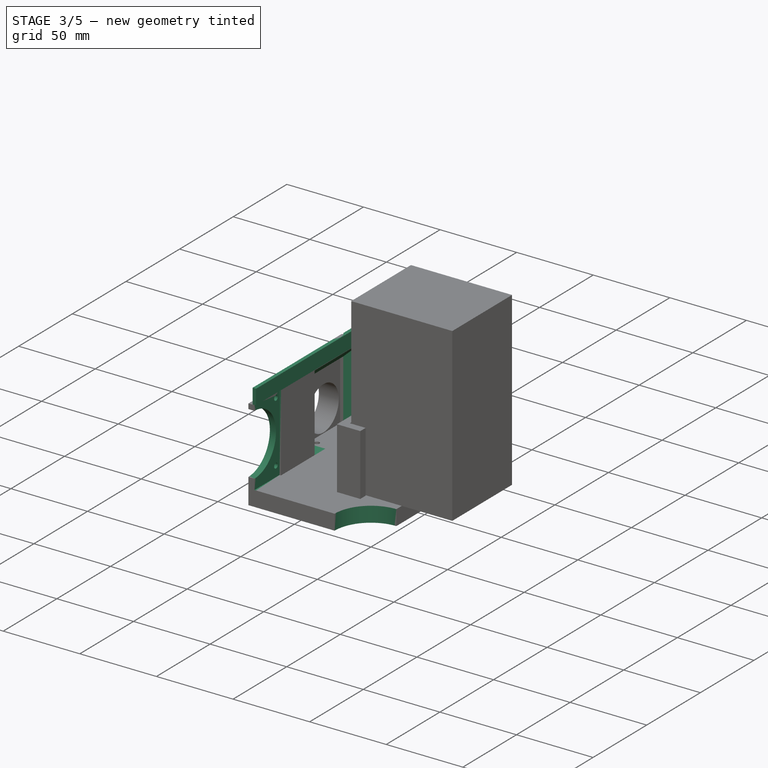
[diagram: stage 3 of 5 — iso view after this stage's code; geometry added in this stage tinted green]
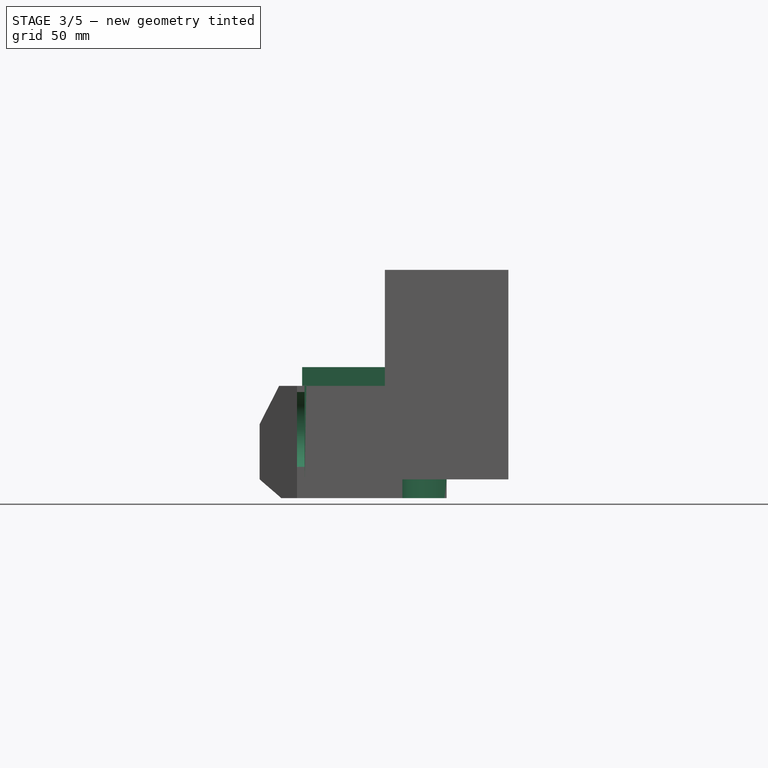
[diagram: stage 3 of 5 — front view after this stage's code; geometry added in this stage tinted green]
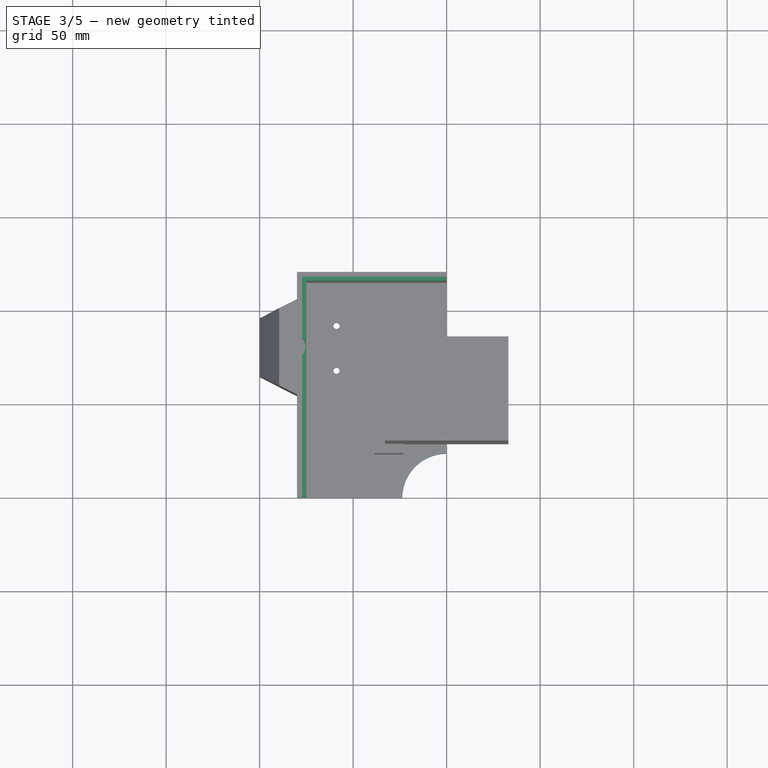
[diagram: stage 3 of 5 — top view after this stage's code; geometry added in this stage tinted green]
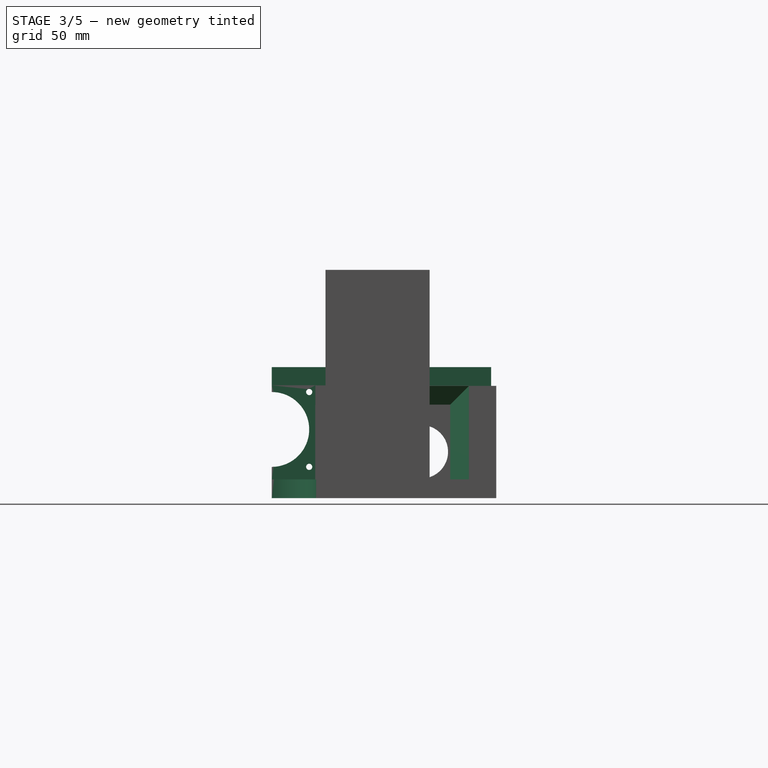
[diagram: stage 3 of 5 — right view after this stage's code; geometry added in this stage tinted green]
FEATURE [Sketcher::SketchObject] Sketch009
  MapMode = 5
  Support = -> [XY_Plane]
  expr: Constraints[0] = config.grasscutter_motor_radius + config.car_wall_thickness
  sketch-geometry (1):
    g0: Circle CenterX=0 CenterY=0 CenterZ=0 NormalX=0 NormalY=0 NormalZ=1 AngleXU=0 Radius=23.7
  constraints (1):
    c: Radius(g0) = 23.7
FEATURE [PartDesign::Pocket] Pocket005  label="pocket-for-grasscutter"
  BaseFeature = -> Pocket004
  Length = 5
  Length2 = 100
  Profile = -> Sketch009
  Reversed = true
  Type = 1
FEATURE [Sketcher::SketchObject] Sketch014
  AttachmentOffset = pos=(0,0,60) rot=(0,0,1;0rad)
  MapMode = 5
  Placement = pos=(0,0,60) rot=(0,0,1;0rad)
  Support = -> [XY_Plane]
  expr: Constraints[26] = config.car_connect_magnet_radius + 0.5mm
  expr: Constraints[25] = config.engine_placement_from_base
  expr: Constraints[23] = config.car_connect_magnet_radius
  expr: Constraints[17] = (config.car_wall_thickness - config.car_connect_space) / 2
  expr: AttachmentOffset.Base.z = config.lower_car_height
  expr: Constraints[16] = config.car_length / 2 - config.car_wall_thickness
  expr: Constraints[15] = config.car_width / 2 - config.car_wall_thickness
  expr: Constraints[13] = (config.car_wall_thickness - config.car_connect_space) / 2
  sketch-geometry (9):
    g0: LineSegment StartX=0 StartY=115 StartZ=0 EndX=0 EndY=117.25 EndZ=0
    g1: LineSegment StartX=0 StartY=117.25 StartZ=0 EndX=-77.25 EndY=117.25 EndZ=0
    g2: LineSegment StartX=-77.25 StartY=117.25 StartZ=0 EndX=-77.25 EndY=84.6489 EndZ=0
    g3: LineSegment StartX=-77.25 StartY=0 StartZ=0 EndX=-75 EndY=0 EndZ=0
    g4: LineSegment StartX=-75 StartY=0 StartZ=0 EndX=-75 EndY=115 EndZ=0
    g5: LineSegment StartX=-75 StartY=115 StartZ=0 EndX=0 EndY=115 EndZ=0
    g6: LineSegment StartX=-77.25 StartY=0 StartZ=0 EndX=-77.25 EndY=75.3511 EndZ=0
    g7: LineSegment [constr] StartX=-77.25 StartY=84.6489 StartZ=0 EndX=-77.25 EndY=75.3511 EndZ=0
    g8: ArcOfCircle CenterX=-82.55 CenterY=80 CenterZ=0 NormalX=0 NormalY=0 NormalZ=1 AngleXU=0 Radius=7.05 StartAngle=5.56314 EndAngle=7.00323
  constraints (27):
    c: PointOnObject(g0,g-2)
    c: PointOnObject(g0,g-2)
    c: Coincident(g0,g1)
    c: Horizontal(g1)
    c: Coincident(g1,g2)
    c: Vertical(g2)
    c: Coincident(g3,g4)
    c: Vertical(g4)
    c: Coincident(g4,g5)
    c: Coincident(g5,g0)
    c: Horizontal(g5)
    c: PointOnObject(g3,g-1)
    c: PointOnObject(g3,g-1)
    c: DistanceX(g3,g3) = 2.25
    c: DistanceY(g0,g0) = 2.25
    c: DistanceX(g3,g-1) = 75
    c: DistanceY(g-1,g0) = 115
    c: DistanceX(g1,g4) = 2.25
    c: Coincident(g3,g6)
    c: Vertical(g6)
    c: Coincident(g7,g2)
    c: Coincident(g7,g6)
    c: Coincident(g8,g2)
    c: Radius(g8) = 7.05
    c: Coincident(g8,g6)
    c: DistanceY(g-1,g8) = 80
    c: Distance(g8,g4) = 7.55
FEATURE [PartDesign::Pad] Pad004  label="Pad-connector"
  BaseFeature = -> Pocket005
  Length = 10
  Length2 = 100
  Profile = -> Sketch014
  Type = 0
FEATURE [Sketcher::SketchObject] Sketch016
  MapMode = 5
  Placement = pos=(0,0,0) rot=(0.57735,0.57735,0.57735;2.0944rad)
  Support = -> [YZ_Plane]
  expr: Constraints[10] = config.fan_screw_sepdist / 2
  expr: Constraints[18] = config.fan_screw_hole_radius
  expr: Constraints[9] = config.fan_screw_sepdist
  expr: Constraints[8] = config.lower_car_height - config.fan_screw_hole_radius * 2
  sketch-geometry (8):
    g0: LineSegment [constr] StartX=1.2673e-12 StartY=56.7 StartZ=0 EndX=20 EndY=56.7 EndZ=0
    g1: LineSegment [constr] StartX=20 StartY=56.7 StartZ=0 EndX=20 EndY=16.7 EndZ=0
    g2: LineSegment [constr] StartX=20 StartY=16.7 StartZ=0 EndX=1.2683e-12 EndY=16.7 EndZ=0
    g3: LineSegment [constr] StartX=1.2673e-12 StartY=16.7 StartZ=0 EndX=1.2673e-12 EndY=56.7 EndZ=0
    g4: ArcOfCircle CenterX=0 CenterY=36.7 CenterZ=0 NormalX=0 NormalY=0 NormalZ=1 AngleXU=0 Radius=20 StartAngle=4.71239 EndAngle=7.85398
    g5: LineSegment StartX=1.2673e-12 StartY=56.7 StartZ=0 EndX=1.2673e-12 EndY=16.7 EndZ=0
    g6: Circle CenterX=20 CenterY=56.7 CenterZ=0 NormalX=0 NormalY=0 NormalZ=1 AngleXU=0 Radius=1.65
    g7: Circle CenterX=20 CenterY=16.7 CenterZ=0 NormalX=0 NormalY=0 NormalZ=1 AngleXU=0 Radius=1.65
  constraints (21):
    c: Coincident(g0,g1)
    c: Coincident(g1,g2)
    c: Coincident(g2,g3)
    c: Coincident(g3,g0)
    c: Horizontal(g0)
    c: Horizontal(g2)
    c: Vertical(g1)
    c: Vertical(g3)
    c: DistanceY(g-1,g0) = 56.7
    c: Distance(g1) = 40
    c: Distance(g0) = 20
    c: PointOnObject(g4,g3)
    c: Coincident(g4,g0)
    c: Coincident(g5,g4)
    c: Coincident(g6,g0)
    c: Coincident(g7,g1)
    c: Coincident(g2,g4)
    c: Coincident(g2,g5)
    c: Radius(g6) = 1.65
    c: Equal(g6,g7)
    c: PointOnObject(g4,g-2)
FEATURE [PartDesign::Pocket] Pocket009  label="Pocket-fan-opening"
  BaseFeature = -> Pad004
  Length = 5
  Length2 = 100
  Profile = -> Sketch016
  Type = 1
FEATURE [Sketcher::SketchObject] Sketch017
  AttachmentOffset = pos=(0,0,-75) rot=(0,0,1;0rad)
  MapMode = 5
  Placement = pos=(-75,1.67e-14,-1.67e-14) rot=(0.57735,0.57735,0.57735;2.0944rad)
  Support = -> [YZ_Plane]
  expr: AttachmentOffset.Base.z = -config.car_width / 2 + config.car_wall_thickness
  expr: Constraints[11] = config.fan_insert_slit_length / 2 + 0.3mm
  expr: Constraints[10] = config.car_floor_thickness
  expr: Constraints[9] = config.lower_car_height + 0.3mm
  sketch-geometry (4):
    g0: LineSegment StartX=0 StartY=60.3 StartZ=0 EndX=23.3 EndY=60.3 EndZ=0
    g1: LineSegment StartX=23.3 StartY=60.3 StartZ=0 EndX=23.3 EndY=10 EndZ=0
    g2: LineSegment StartX=23.3 StartY=10 StartZ=0 EndX=0 EndY=10 EndZ=0
    g3: LineSegment StartX=0 StartY=10 StartZ=0 EndX=0 EndY=60.3 EndZ=0
  constraints (12):
    c: Coincident(g0,g1)
    c: Coincident(g1,g2)
    c: Coincident(g2,g3)
    c: Coincident(g3,g0)
    c: Horizontal(g0)
    c: Horizontal(g2)
    c: Vertical(g1)
    c: Vertical(g3)
    c: PointOnObject(g0,g-2)
    c: DistanceY(g-1,g0) = 60.3
    c: DistanceY(g-1,g2) = 10
    c: DistanceX(g0,g0) = 23.3
FEATURE [PartDesign::Pocket] Pocket010  label="pocket-fan-slit"
  BaseFeature = -> Pocket009
  Length = 1
  Length2 = 100
  Profile = -> Sketch017
  Type = 0
  expr: Length = config.fan_insert_depth
FEATURE [PartDesign::Body] Body001  label="Body-grasscutter"
  Group = -> [Sketch008,Sketch010,Pad003,Pad002,Sketch011,PolarPattern,Pocket006,Sketch012,Pocket007,Sketch013,Pocket008]
  Origin = -> Origin001
  Tip = -> PolarPattern
FEATURE [PartDesign::Chamfer] Chamfer
  Base = -> Pocket010 [Edge85,Edge84,Edge83]
  BaseFeature = -> Pocket010
  Size = 9.9
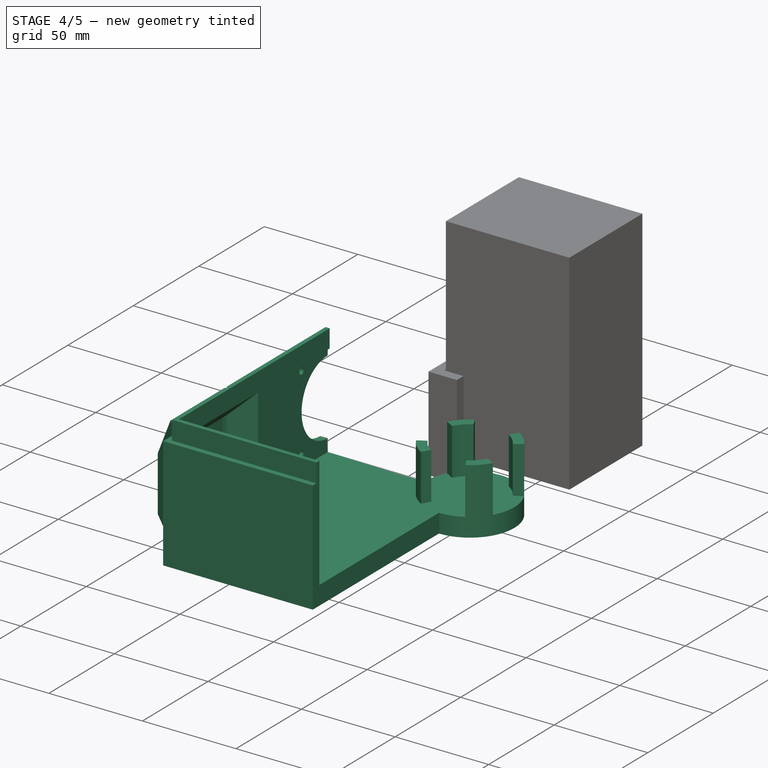
[diagram: stage 4 of 5 — iso view after this stage's code; geometry added in this stage tinted green]
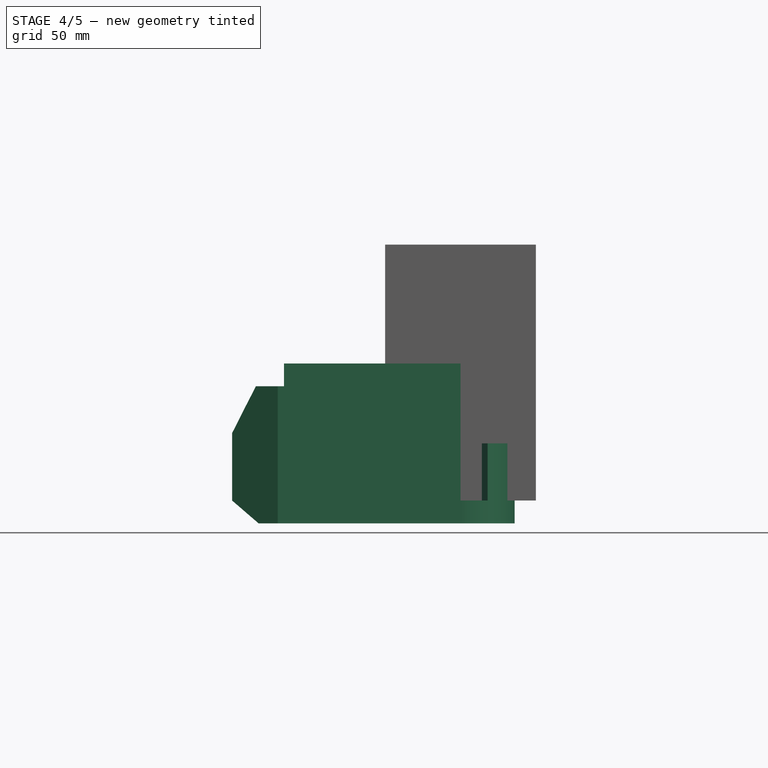
[diagram: stage 4 of 5 — front view after this stage's code; geometry added in this stage tinted green]
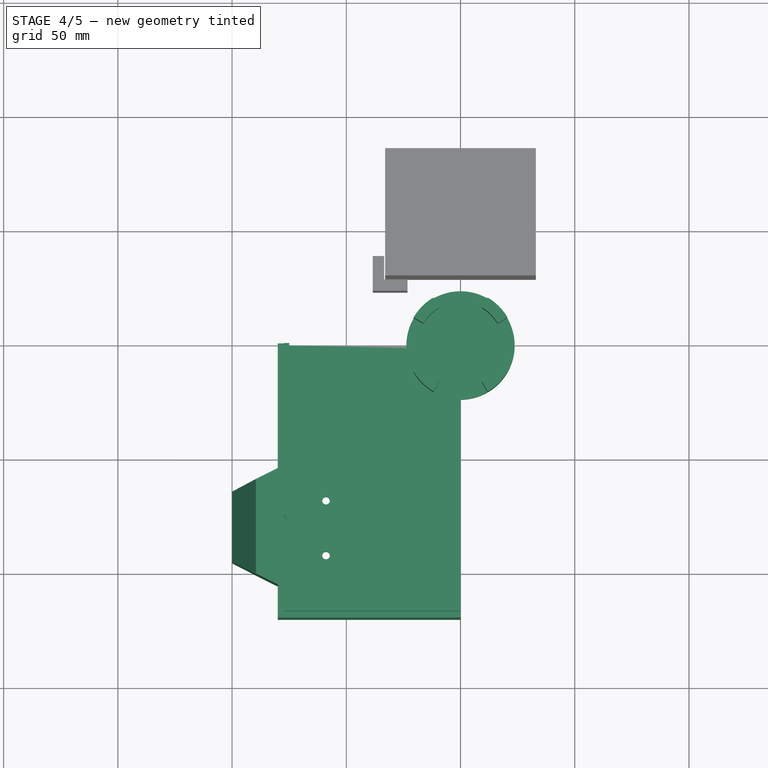
[diagram: stage 4 of 5 — top view after this stage's code; geometry added in this stage tinted green]
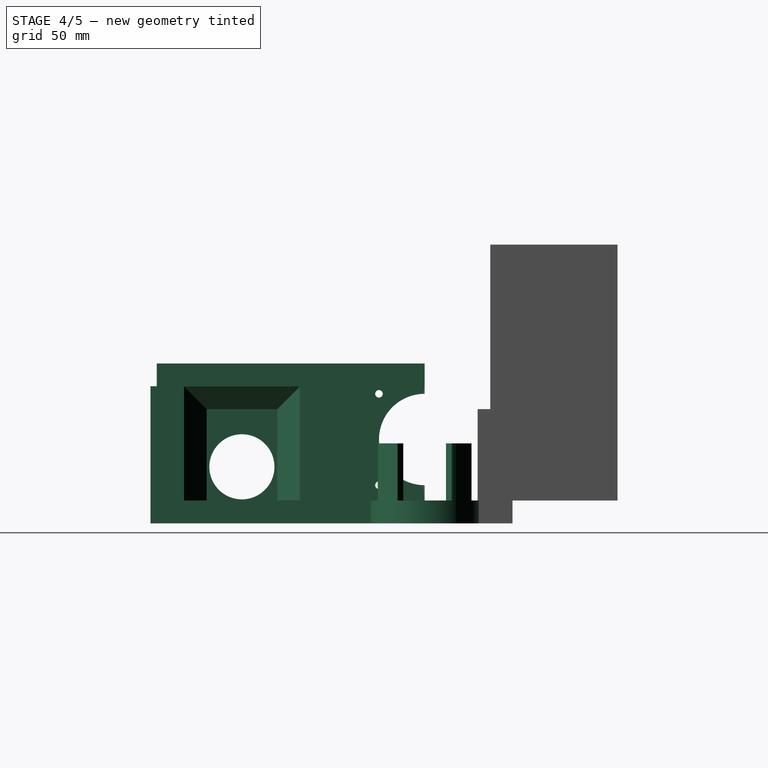
[diagram: stage 4 of 5 — right view after this stage's code; geometry added in this stage tinted green]
FEATURE [Spreadsheet::Sheet] Spreadsheet  label="config"
  cells = A1=NAME; B1=VALUE; A2=car_length; B2(car_length)==240mm; A3=car_width; B3(car_width)==160mm; A4=lower_car_height; B4(lower_car_height)==60mm; A5=upper_car_height; B5(upper_car_height)==50mm; A6=car_floor_thickness; B6(car_floor_thickness)==10mm; A7=car_wall_thickness; B7(car_wall_thickness)==5mm; A8=car_connect_space; B8(car_connect_space)==0.5mm; A9=car_connect_magnet_radius; B9(car_connect_magnet_radius)==7.05mm; A10=car_connect_height; B10==10mm; A11=ENGINES; B11(ENGINES)=; A12=engine_radius; B12(engine_radius)==14.25mm; A13=engine_placement_from_base; B13(engine_placement_from_base)==config.car_length / 2 - 40mm; A14=engine_lift_from_base; B14(engine_lift_from_base)==0.5mm; A15=engine_house_height; B15(engine_house_height)==40mm; A16=engine_house_width; B16(engine_house_width)==30.9mm; A17=engine_house_length; B17(engine_house_length)==35mm; A18=engine_front_length; B18(engine_front_length)==20mm; A19=engine_screw_sepdist; B19(engine_screw_sepdist)==24mm; A20=engine_screw_hole_radius; B20(engine_screw_hole_radius)==1.65mm; A21=engine_screw_nut_radius; B21(engine_screw_nut_radius)==3.55mm; A22=engine_screw_nut_depth; B22(engine_screw_nut_depth)==1.8mm; A23=engine_pocket_house; B23(engine_pocket_house)==12mm; A24=FAN; A25=fan_length; B25(fan_length)==50mm; A26=fan_insert_slit_length; B26(fan_insert_slit_length)==46mm; A27=fan_screw_sepdist; B27(fan_screw_sepdist)==40mm; A28=fan_insert_depth; B28(fan_insert_depth)==1mm; A29=fan_screw_hole_radius; B29(fan_screw_hole_radius)==1.65mm; A30=fan_screw_nut_radius; B30(fan_screw_nut_radius)==3.55mm; A31=GRASSCUTTER; A32=grasscutter_motor_radius; B32(grasscutter_motor_radius)==18.7mm; A33=grasscutter_inner_radius; B33(grasscutter_inner_radius)==7.5mm; A34=grasscutter_inner_depth; B34(grasscutter_inner_depth)==4.55mm; A35=grasscutter_wall_height; B35(grasscutter_wall_height)==50mm; A36=grasscutter_screw_radius; B36(grasscutter_screw_radius)==13.5mm; A37=grasscutter_screw_circledist; B37(grasscutter_screw_circledist)==2 * 3.14 * B36 / 6; A38=grasscutter_screw_hole_radius; B38(grasscutter_screw_hole_radius)==1.52mm; A39=grasscutter_screw_nut_radius; B39(grasscutter_screw_nut_radius)==2.5mm; A40=grasscutter_screw_nut_depth; B40(grasscutter_screw_nut_depth)==1mm; A44=BATTERY; A45=battery_length; B45(battery_length)==66mm; A46=battery_width; B46(battery_width)==55.7mm; A47=battery_height; B47(battery_height)==112mm
FEATURE [Sketcher::SketchObject] Sketch008
  MapMode = 5
  Support = -> [XY_Plane001]
  expr: Constraints[3] = config.grasscutter_motor_radius + config.car_wall_thickness
  expr: Constraints[1] = config.grasscutter_motor_radius
  sketch-geometry (8):
    g0: Circle [constr] CenterX=0 CenterY=0 CenterZ=0 NormalX=0 NormalY=0 NormalZ=1 AngleXU=0 Radius=18.7
    g1: Circle [constr] CenterX=0 CenterY=0 CenterZ=0 NormalX=0 NormalY=0 NormalZ=1 AngleXU=0 Radius=23.7
    g2: ArcOfCircle CenterX=0 CenterY=0 CenterZ=0 NormalX=0 NormalY=0 NormalZ=1 AngleXU=0 Radius=18.7 StartAngle=0.523599 EndAngle=1.0472
    g3: ArcOfCircle CenterX=0 CenterY=0 CenterZ=0 NormalX=0 NormalY=0 NormalZ=1 AngleXU=0 Radius=23.7 StartAngle=0.523599 EndAngle=1.0472
    g4: LineSegment StartX=16.1947 StartY=9.35 StartZ=0 EndX=20.5248 EndY=11.85 EndZ=0
    g5: LineSegment StartX=9.35 StartY=16.1947 StartZ=0 EndX=11.85 EndY=20.5248 EndZ=0
    g6: LineSegment [constr] StartX=0 StartY=0 StartZ=0 EndX=16.1947 EndY=9.35 EndZ=0
    g7: LineSegment [constr] StartX=0 StartY=0 StartZ=0 EndX=9.35 EndY=16.1947 EndZ=0
  constraints (20):
    c: Coincident(g0,g-1)
    c: Radius(g0) = 18.7
    c: Coincident(g1,g0)
    c: Radius(g1) = 23.7
    c: PointOnObject(g2,g0)
    c: PointOnObject(g3,g1)
    c: Coincident(g3,g4)
    c: Coincident(g2,g4)
    c: Coincident(g2,g5)
    c: Coincident(g3,g5)
    c: Coincident(g6,g2)
    c: Coincident(g6,g2)
    c: Coincident(g7,g2)
    c: Coincident(g7,g2)
    c: Angle(g6,g7) = 0.523599
    c: Parallel(g5,g7)
    c: Parallel(g4,g6)
    c: Coincident(g0,g2)
    c: Coincident(g0,g3)
    c: Angle(g7,g-2) = 0.523599
FEATURE [Sketcher::SketchObject] Sketch010
  MapMode = 5
  Support = -> [XY_Plane001]
  expr: Constraints[0] = config.grasscutter_motor_radius + config.car_wall_thickness
  sketch-geometry (1):
    g0: Circle CenterX=0 CenterY=0 CenterZ=0 NormalX=0 NormalY=0 NormalZ=1 AngleXU=0 Radius=23.7
  constraints (1):
    c: Radius(g0) = 23.7
FEATURE [PartDesign::Pad] Pad003  label="pad-floor001"
  Length = 10
  Length2 = 100
  Profile = -> Sketch010
  Type = 0
  expr: Length = config.car_floor_thickness
FEATURE [PartDesign::Pad] Pad002  label="pad-wall"
  BaseFeature = -> Pad003
  Length = 35
  Length2 = 100
  Profile = -> Sketch008
  Type = 0
  expr: Length = config.grasscutter_wall_height / 2 + config.car_floor_thickness
FEATURE [PartDesign::PolarPattern] PolarPattern
  Angle = 360
  Axis = -> Sketch008 [N_Axis]
  BaseFeature = -> Pad002
  Occurrences = 4
  Originals = -> [Pad002]
FEATURE [PartDesign::Body] Body  label="Body-q11-lower"
  Group = -> [Sketch,Pad,Sketch002,Pad001,Sketch003,Pocket,Sketch004,Pocket001,Sketch005,Pocket002,Sketch006,Pocket003,Sketch007,Pocket004,Sketch009,Pocket005,Sketch014,Pad004,Sketch016,Pocket009,Sketch017,Pocket010,Chamfer]
  Origin = -> Origin
  Tip = -> Chamfer
FEATURE [Part::Mirroring] Part__Mirroring  label="Body-q11-lower (Mirror #1)"
  Base = (-50,3.8147e-06,35)
  Normal = (0,1,-1.19209e-07)
  Source = -> Body
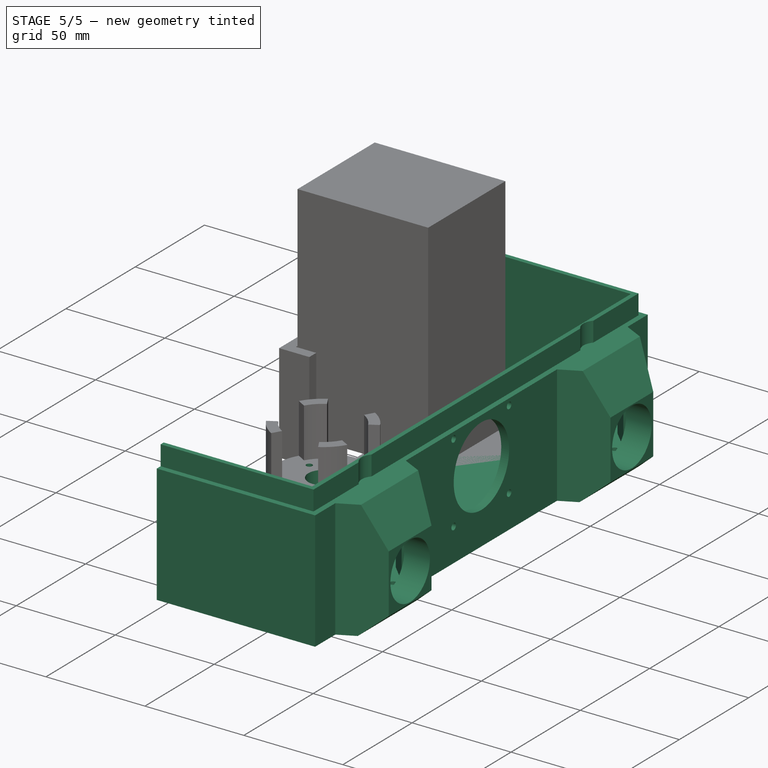
[diagram: stage 5 of 5 — iso view after this stage's code; geometry added in this stage tinted green]
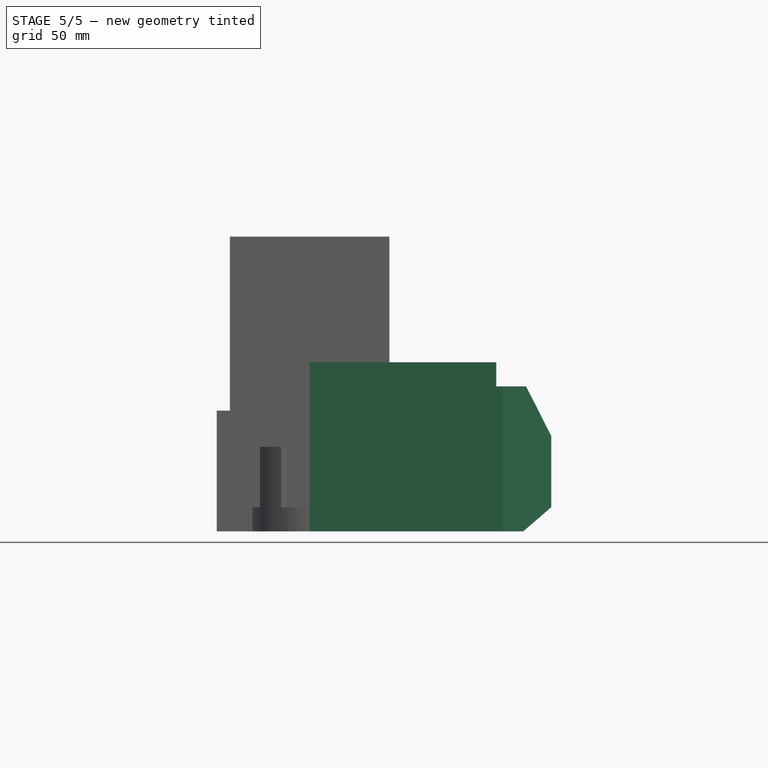
[diagram: stage 5 of 5 — front view after this stage's code; geometry added in this stage tinted green]
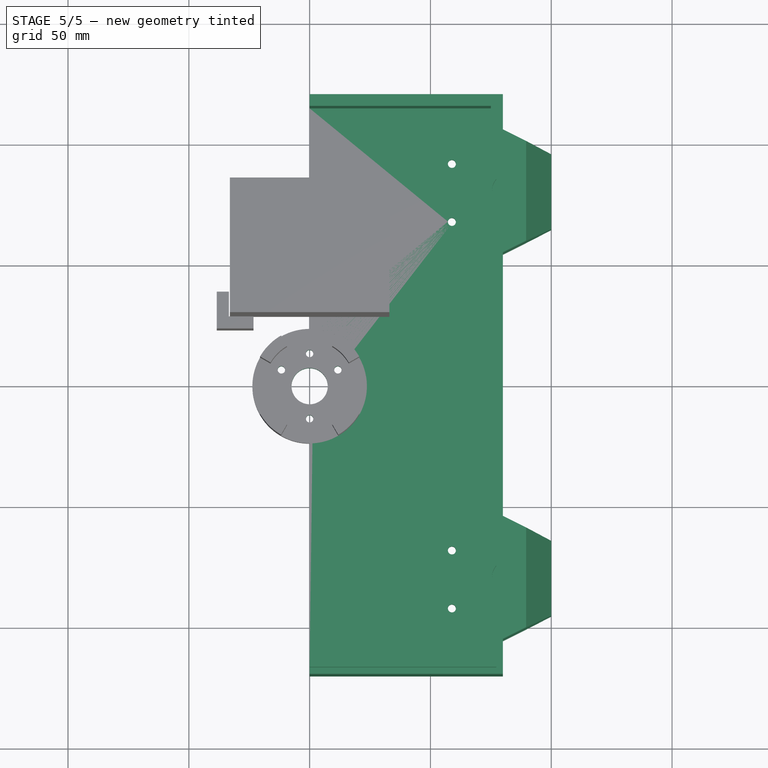
[diagram: stage 5 of 5 — top view after this stage's code; geometry added in this stage tinted green]
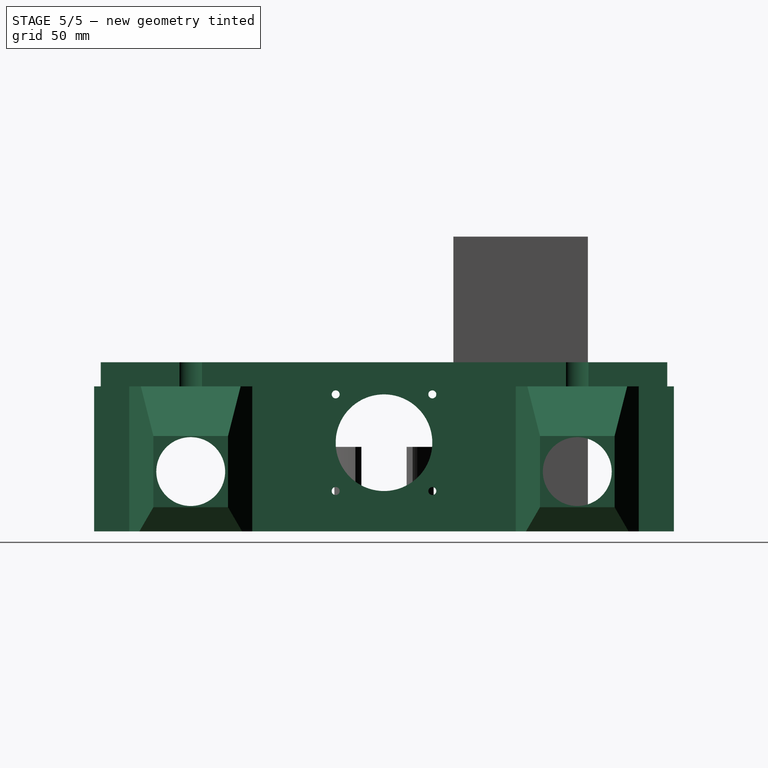
[diagram: stage 5 of 5 — right view after this stage's code; geometry added in this stage tinted green]
FEATURE [PartDesign::Pocket] Pocket006  label="pocket-inner-radius"
  BaseFeature = -> PolarPattern
  Length = 4.55
  Length2 = 100
  Profile = -> Sketch011
  Type = 1
  expr: Length = config.grasscutter_inner_depth
FEATURE [PartDesign::Pocket] Pocket007  label="pocket-screw-hole"
  BaseFeature = -> Pocket006
  Length = 5
  Length2 = 100
  Profile = -> Sketch012
  Reversed = true
  Type = 1
FEATURE [PartDesign::Pocket] Pocket008  label="pocket-screw-head-hole"
  BaseFeature = -> Pocket007
  Length = 1
  Length2 = 100
  Profile = -> Sketch013
  Reversed = true
  Type = 0
  expr: Length = config.grasscutter_screw_nut_depth
FEATURE [Part::Mirroring] Part__Mirroring001  label="Body-q11-lower (Mirror #2)"
  Base = (0,0,0)
  Normal = (1,0,0)
  Source = -> Body
FEATURE [Part::Mirroring] Part__Mirroring002  label="Body-q11-lower (Mirror #3)"
  Base = (0,0,0)
  Normal = (1,0,0)
  Source = -> Part__Mirroring
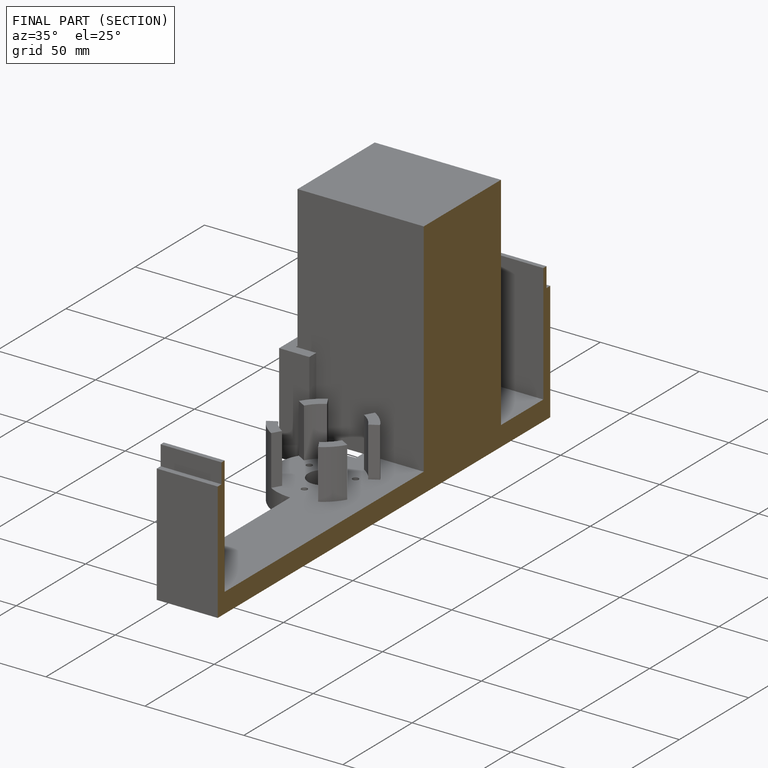
[diagram: finished part — half-section view (interior)]
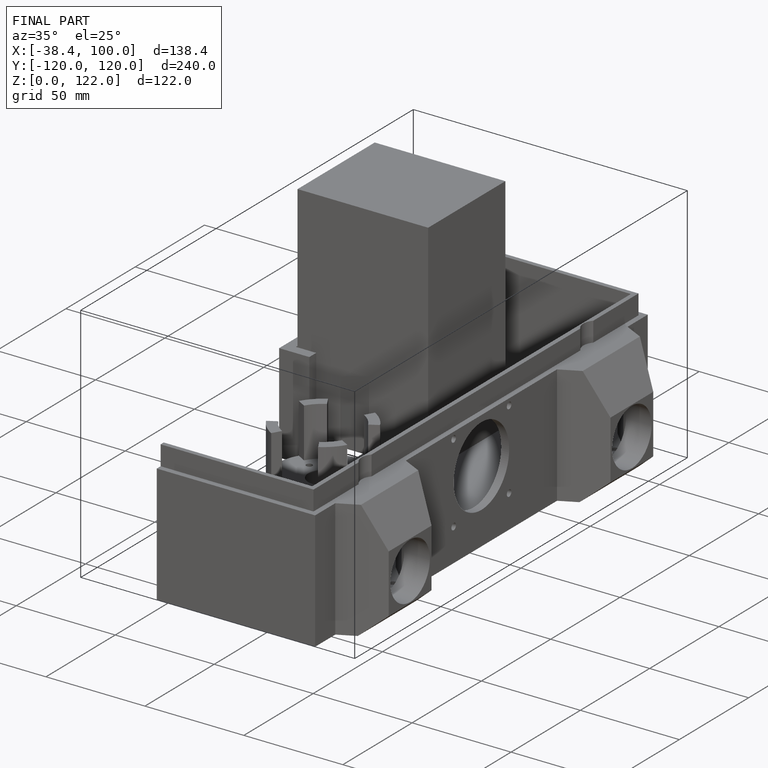
[diagram: finished part — iso view with bounding-box wireframe]
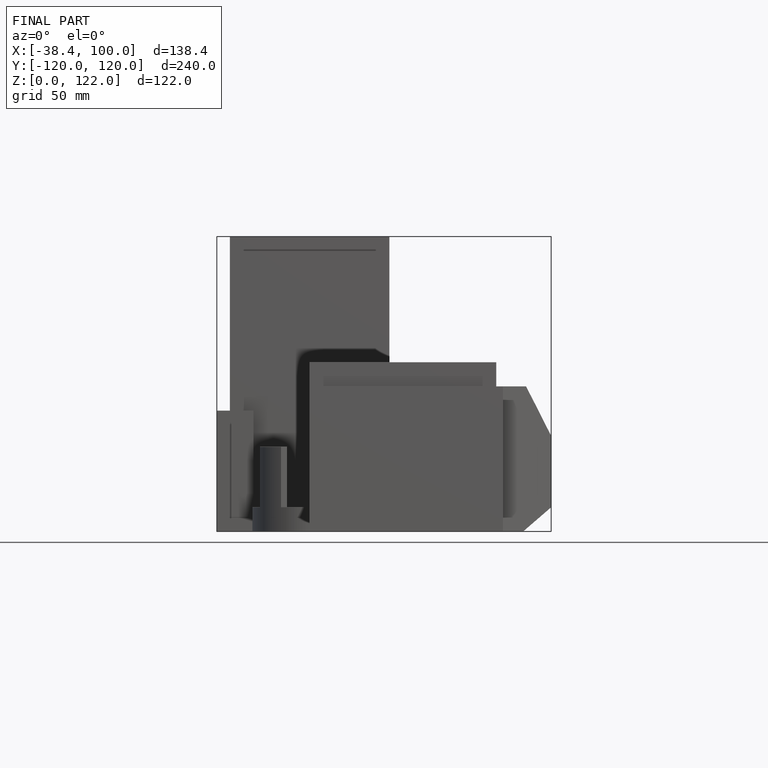
[diagram: finished part — front view with bounding-box wireframe]
